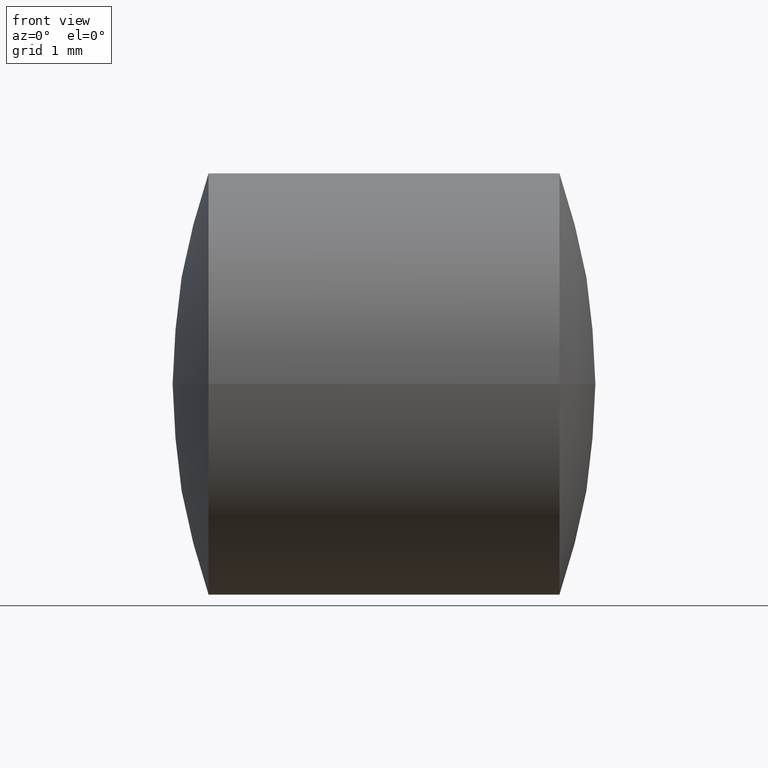
[diagram: clean part render]
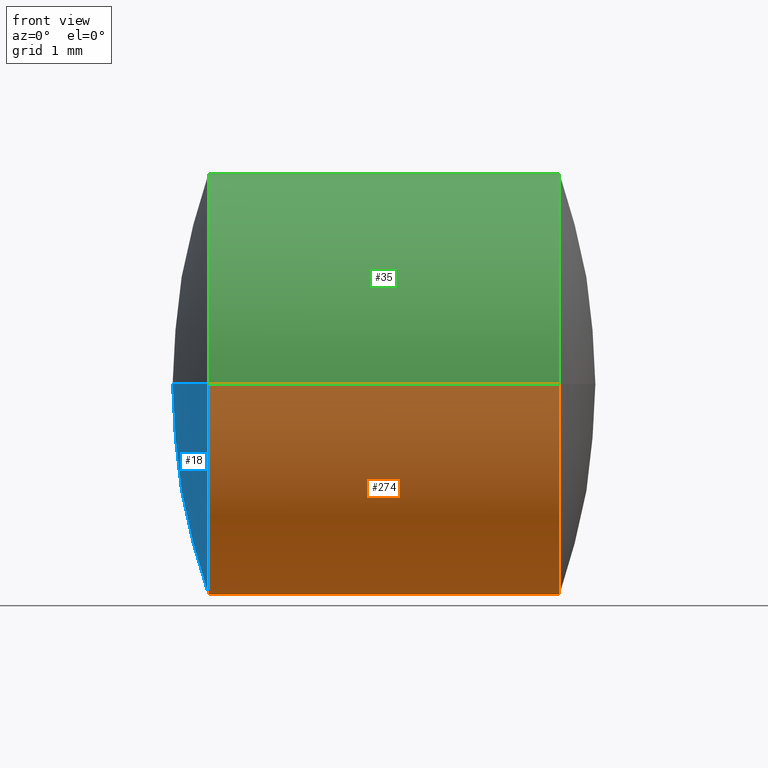
[diagram: same view with three faces highlighted in distinct colors, each labeled with its STEP entity id]
A machine part, front view with three faces highlighted in distinct colors.
Their STEP definitions:

[orange] entity #274 — the highlighted cylindrical surface (partial cylindrical patch) has radius 3 mm, axis along (1, 0, -0).
#1 = CIRCLE ( 'NONE', #157, 3.000001032702598100 ) ;
#13 = CARTESIAN_POINT ( 'NONE',  ( 22.91320241020381200, 11.48412513980631800, 0.0000000000000000000 ) ) ;
#16 = DIRECTION ( 'NONE',  ( 1.000000000000000000, 1.031215386547264900E-015, -0.0000000000000000000 ) ) ;
#37 = CARTESIAN_POINT ( 'NONE',  ( 23.77530362994406600, 14.48412617250891500, 0.0000000000000000000 ) ) ;
#38 = CARTESIAN_POINT ( 'NONE',  ( 22.91320241020381600, 8.484124107103731700, 0.0000000000000000000 ) ) ;
#58 = ORIENTED_EDGE ( 'NONE', *, *, #269, .F. ) ;
#61 = LINE ( 'NONE', #37, #209 ) ;
#68 = VERTEX_POINT ( 'NONE', #132 ) ;
#83 = DIRECTION ( 'NONE',  ( -1.156481919217245100E-015, 1.000000000000000000, 0.0000000000000000000 ) ) ;
#86 = DIRECTION ( 'NONE',  ( -1.156481919217243800E-015, 1.000000000000000000, 0.0000000000000000000 ) ) ;
#95 = VERTEX_POINT ( 'NONE', #38 ) ;
#112 = CARTESIAN_POINT ( 'NONE',  ( 22.91320241020380900, 14.48412617250891000, -3.673941662137976700E-016 ) ) ;
#118 = CIRCLE ( 'NONE', #194, 3.000001032702591000 ) ;
#131 = ORIENTED_EDGE ( 'NONE', *, *, #175, .F. ) ;
#132 = CARTESIAN_POINT ( 'NONE',  ( 17.93320241020381200, 14.48412617250891400, 0.0000000000000000000 ) ) ;
#135 = CARTESIAN_POINT ( 'NONE',  ( 17.93320241020381500, 11.48412513980631500, 0.0000000000000000000 ) ) ;
#137 = CARTESIAN_POINT ( 'NONE',  ( 17.93320241020381900, 8.484124107103717400, 3.673941662137992000E-016 ) ) ;
#155 = DIRECTION ( 'NONE',  ( -1.156481919217246500E-015, 1.000000000000000000, 0.0000000000000000000 ) ) ;
#157 = AXIS2_PLACEMENT_3D ( 'NONE', #135, #185, #86 ) ;
#173 = VECTOR ( 'NONE', #250, 1000.000000000000000 ) ;
#175 = EDGE_CURVE ( 'NONE', #245, #95, #213, .T. ) ;
#182 = DIRECTION ( 'NONE',  ( 1.000000000000000000, 1.031215386547264900E-015, -0.0000000000000000000 ) ) ;
#185 = DIRECTION ( 'NONE',  ( 1.000000000000000000, 1.031215386547264900E-015, -0.0000000000000000000 ) ) ;
#188 = VERTEX_POINT ( 'NONE', #112 ) ;
#192 = ORIENTED_EDGE ( 'NONE', *, *, #202, .T. ) ;
#194 = AXIS2_PLACEMENT_3D ( 'NONE', #13, #16, #155 ) ;
#199 = CYLINDRICAL_SURFACE ( 'NONE', #246, 3.000001032702594600 ) ;
#202 = EDGE_CURVE ( 'NONE', #245, #68, #1, .T. ) ;
#207 = CARTESIAN_POINT ( 'NONE',  ( 23.77530362994406900, 11.48412513980632000, 0.0000000000000000000 ) ) ;
#209 = VECTOR ( 'NONE', #271, 1000.000000000000000 ) ;
#213 = LINE ( 'NONE', #293, #173 ) ;
#234 = ORIENTED_EDGE ( 'NONE', *, *, #287, .T. ) ;
#245 = VERTEX_POINT ( 'NONE', #137 ) ;
#246 = AXIS2_PLACEMENT_3D ( 'NONE', #207, #182, #83 ) ;
#250 = DIRECTION ( 'NONE',  ( 1.000000000000000000, 1.031215386547264900E-015, -0.0000000000000000000 ) ) ;
#268 = FACE_OUTER_BOUND ( 'NONE', #303, .T. ) ;
#269 = EDGE_CURVE ( 'NONE', #95, #188, #118, .T. ) ;
#271 = DIRECTION ( 'NONE',  ( 1.000000000000000000, 1.031215386547264900E-015, -0.0000000000000000000 ) ) ;
#274 = ADVANCED_FACE ( 'NONE', ( #268 ), #199, .T. ) ;
#287 = EDGE_CURVE ( 'NONE', #68, #188, #61, .T. ) ;
#293 = CARTESIAN_POINT ( 'NONE',  ( 23.77530362994407300, 8.484124107103726300, 3.673941662137986600E-016 ) ) ;
#303 = EDGE_LOOP ( 'NONE', ( #131, #192, #234, #58 ) ) ;

[blue] entity #18 — the highlighted spherical surface has radius 9.0787 mm.
#1 = CIRCLE ( 'NONE', #157, 3.000001032702598100 ) ;
#3 = EDGE_CURVE ( 'NONE', #282, #68, #256, .T. ) ;
#10 = ORIENTED_EDGE ( 'NONE', *, *, #202, .F. ) ;
#18 = ADVANCED_FACE ( 'NONE', ( #170 ), #196, .T. ) ;
#32 = DIRECTION ( 'NONE',  ( -1.146461966241064700E-015, 1.000000000000000000, 0.0000000000000000000 ) ) ;
#41 = CARTESIAN_POINT ( 'NONE',  ( 17.42320994893274000, 11.48412513980631100, 0.0000000000000000000 ) ) ;
#57 = DIRECTION ( 'NONE',  ( 0.0000000000000000000, 0.0000000000000000000, 1.000000000000000000 ) ) ;
#68 = VERTEX_POINT ( 'NONE', #132 ) ;
#86 = DIRECTION ( 'NONE',  ( -1.156481919217243800E-015, 1.000000000000000000, 0.0000000000000000000 ) ) ;
#87 = CARTESIAN_POINT ( 'NONE',  ( 26.50187209590910000, 11.48412513980632000, 0.0000000000000000000 ) ) ;
#102 = CARTESIAN_POINT ( 'NONE',  ( 26.50187209590910000, 11.48412513980632000, 0.0000000000000000000 ) ) ;
#105 = CARTESIAN_POINT ( 'NONE',  ( 26.50187209590910000, 11.48412513980632000, 0.0000000000000000000 ) ) ;
#110 = DIRECTION ( 'NONE',  ( 0.0000000000000000000, -1.000000000000000000, 1.224646799147353200E-016 ) ) ;
#123 = ORIENTED_EDGE ( 'NONE', *, *, #284, .F. ) ;
#132 = CARTESIAN_POINT ( 'NONE',  ( 17.93320241020381200, 14.48412617250891400, 0.0000000000000000000 ) ) ;
#134 = ORIENTED_EDGE ( 'NONE', *, *, #3, .T. ) ;
#135 = CARTESIAN_POINT ( 'NONE',  ( 17.93320241020381500, 11.48412513980631500, 0.0000000000000000000 ) ) ;
#137 = CARTESIAN_POINT ( 'NONE',  ( 17.93320241020381900, 8.484124107103717400, 3.673941662137992000E-016 ) ) ;
#151 = DIRECTION ( 'NONE',  ( -1.000000000000000000, 0.0000000000000000000, 0.0000000000000000000 ) ) ;
#157 = AXIS2_PLACEMENT_3D ( 'NONE', #135, #185, #86 ) ;
#160 = AXIS2_PLACEMENT_3D ( 'NONE', #105, #217, #151 ) ;
#170 = FACE_OUTER_BOUND ( 'NONE', #241, .T. ) ;
#171 = AXIS2_PLACEMENT_3D ( 'NONE', #87, #272, #110 ) ;
#185 = DIRECTION ( 'NONE',  ( 1.000000000000000000, 1.031215386547264900E-015, -0.0000000000000000000 ) ) ;
#196 = SPHERICAL_SURFACE ( 'NONE', #279, 9.078662146976359500 ) ;
#202 = EDGE_CURVE ( 'NONE', #245, #68, #1, .T. ) ;
#217 = DIRECTION ( 'NONE',  ( -0.0000000000000000000, 0.0000000000000000000, -1.000000000000000000 ) ) ;
#241 = EDGE_LOOP ( 'NONE', ( #123, #134, #10 ) ) ;
#245 = VERTEX_POINT ( 'NONE', #137 ) ;
#256 = CIRCLE ( 'NONE', #160, 9.078662146976359500 ) ;
#272 = DIRECTION ( 'NONE',  ( -1.262874622366608600E-031, 1.224646799147353200E-016, 1.000000000000000000 ) ) ;
#279 = AXIS2_PLACEMENT_3D ( 'NONE', #102, #57, #32 ) ;
#282 = VERTEX_POINT ( 'NONE', #41 ) ;
#284 = EDGE_CURVE ( 'NONE', #282, #245, #299, .T. ) ;
#299 = CIRCLE ( 'NONE', #171, 9.078662146976359500 ) ;

[green] entity #35 — the highlighted cylindrical surface (partial cylindrical patch) has radius 3 mm, axis along (1, 0, -0).
#8 = CARTESIAN_POINT ( 'NONE',  ( 23.77530362994406900, 11.48412513980632000, 0.0000000000000000000 ) ) ;
#30 = ORIENTED_EDGE ( 'NONE', *, *, #59, .F. ) ;
#31 = EDGE_CURVE ( 'NONE', #68, #245, #82, .T. ) ;
#35 = ADVANCED_FACE ( 'NONE', ( #264 ), #100, .T. ) ;
#37 = CARTESIAN_POINT ( 'NONE',  ( 23.77530362994406600, 14.48412617250891500, 0.0000000000000000000 ) ) ;
#38 = CARTESIAN_POINT ( 'NONE',  ( 22.91320241020381600, 8.484124107103731700, 0.0000000000000000000 ) ) ;
#56 = AXIS2_PLACEMENT_3D ( 'NONE', #174, #177, #216 ) ;
#59 = EDGE_CURVE ( 'NONE', #188, #95, #126, .T. ) ;
#60 = DIRECTION ( 'NONE',  ( -1.156481919217246500E-015, 1.000000000000000000, 0.0000000000000000000 ) ) ;
#61 = LINE ( 'NONE', #37, #209 ) ;
#68 = VERTEX_POINT ( 'NONE', #132 ) ;
#78 = ORIENTED_EDGE ( 'NONE', *, *, #287, .F. ) ;
#79 = AXIS2_PLACEMENT_3D ( 'NONE', #242, #201, #60 ) ;
#80 = DIRECTION ( 'NONE',  ( 1.000000000000000000, 1.031215386547264900E-015, -0.0000000000000000000 ) ) ;
#82 = CIRCLE ( 'NONE', #56, 3.000001032702598100 ) ;
#84 = AXIS2_PLACEMENT_3D ( 'NONE', #8, #80, #104 ) ;
#95 = VERTEX_POINT ( 'NONE', #38 ) ;
#100 = CYLINDRICAL_SURFACE ( 'NONE', #84, 3.000001032702594600 ) ;
#104 = DIRECTION ( 'NONE',  ( -1.156481919217245100E-015, 1.000000000000000000, 0.0000000000000000000 ) ) ;
#112 = CARTESIAN_POINT ( 'NONE',  ( 22.91320241020380900, 14.48412617250891000, -3.673941662137976700E-016 ) ) ;
#126 = CIRCLE ( 'NONE', #79, 3.000001032702591000 ) ;
#132 = CARTESIAN_POINT ( 'NONE',  ( 17.93320241020381200, 14.48412617250891400, 0.0000000000000000000 ) ) ;
#137 = CARTESIAN_POINT ( 'NONE',  ( 17.93320241020381900, 8.484124107103717400, 3.673941662137992000E-016 ) ) ;
#173 = VECTOR ( 'NONE', #250, 1000.000000000000000 ) ;
#174 = CARTESIAN_POINT ( 'NONE',  ( 17.93320241020381500, 11.48412513980631500, 0.0000000000000000000 ) ) ;
#175 = EDGE_CURVE ( 'NONE', #245, #95, #213, .T. ) ;
#177 = DIRECTION ( 'NONE',  ( 1.000000000000000000, 1.031215386547264900E-015, -0.0000000000000000000 ) ) ;
#188 = VERTEX_POINT ( 'NONE', #112 ) ;
#201 = DIRECTION ( 'NONE',  ( 1.000000000000000000, 1.031215386547264900E-015, -0.0000000000000000000 ) ) ;
#209 = VECTOR ( 'NONE', #271, 1000.000000000000000 ) ;
#213 = LINE ( 'NONE', #293, #173 ) ;
#216 = DIRECTION ( 'NONE',  ( -1.156481919217243800E-015, 1.000000000000000000, 0.0000000000000000000 ) ) ;
#242 = CARTESIAN_POINT ( 'NONE',  ( 22.91320241020381200, 11.48412513980631800, 0.0000000000000000000 ) ) ;
#245 = VERTEX_POINT ( 'NONE', #137 ) ;
#249 = EDGE_LOOP ( 'NONE', ( #301, #292, #30, #78 ) ) ;
#250 = DIRECTION ( 'NONE',  ( 1.000000000000000000, 1.031215386547264900E-015, -0.0000000000000000000 ) ) ;
#264 = FACE_OUTER_BOUND ( 'NONE', #249, .T. ) ;
#271 = DIRECTION ( 'NONE',  ( 1.000000000000000000, 1.031215386547264900E-015, -0.0000000000000000000 ) ) ;
#287 = EDGE_CURVE ( 'NONE', #68, #188, #61, .T. ) ;
#292 = ORIENTED_EDGE ( 'NONE', *, *, #175, .T. ) ;
#293 = CARTESIAN_POINT ( 'NONE',  ( 23.77530362994407300, 8.484124107103726300, 3.673941662137986600E-016 ) ) ;
#301 = ORIENTED_EDGE ( 'NONE', *, *, #31, .T. ) ;